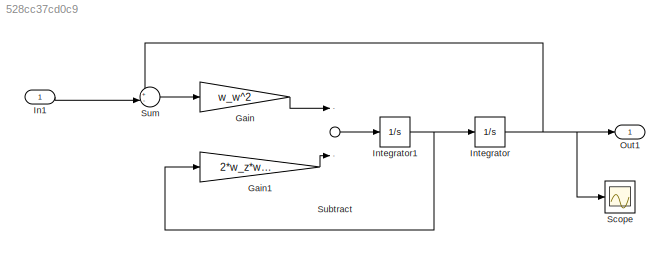
MODEL slx_528cc37cd0c9
KIND model
BLOCK [Gain] Gain
  Gain = w_w^2
  OutDataTypeStr = Inherit: Inherit via internal rule
  ParamDataTypeStr = Inherit: Inherit via internal rule
  SaturateOnIntegerOverflow = off
BLOCK [Gain] Gain1
  Gain = 2*w_z*w_w
  OutDataTypeStr = Inherit: Inherit via internal rule
  ParamDataTypeStr = Inherit: Inherit via internal rule
  SaturateOnIntegerOverflow = off
BLOCK [Inport] In1
  IconDisplay = Port number
BLOCK [Integrator] Integrator
  Ports = [1, 1]
BLOCK [Integrator] Integrator1
  Ports = [1, 1]
BLOCK [Outport] Out1
  IconDisplay = Port number
BLOCK [Scope] Scope
  DataFormat = StructureWithTime
  Floating = off
  NumInputPorts = 1
  Ports = [1]
  SampleTime = 0
  ShowLegends = off
BLOCK [Sum] Subtract
  InputSameDT = off
  Inputs = --
  OutDataTypeStr = Inherit: Inherit via internal rule
  Ports = [2, 1]
  SaturateOnIntegerOverflow = off
BLOCK [Sum] Sum
  IconShape = round
  InputSameDT = off
  Inputs = +-|
  OutDataTypeStr = Inherit: Inherit via internal rule
  Ports = [2, 1]
  SaturateOnIntegerOverflow = off
LINE Gain1:1 -> Subtract:2
LINE Gain:1 -> Subtract:1
LINE In1:1 -> Sum:2
NET Integrator1:1 -> Gain1:1, Integrator:1
NET Integrator:1 -> Out1:1, Scope:1, Sum:1
LINE Subtract:1 -> Integrator1:1
LINE Sum:1 -> Gain:1
note: NET lines group one-source signal fan-out (src -> all destinations, sorted); 1:1 wires keep LINE
